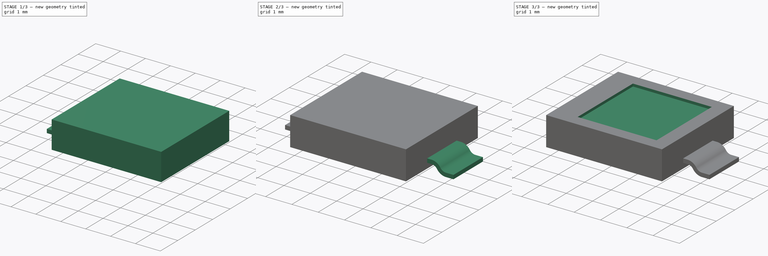
[diagram: build sequence overview — one tinted view per stage of 3, left to right]
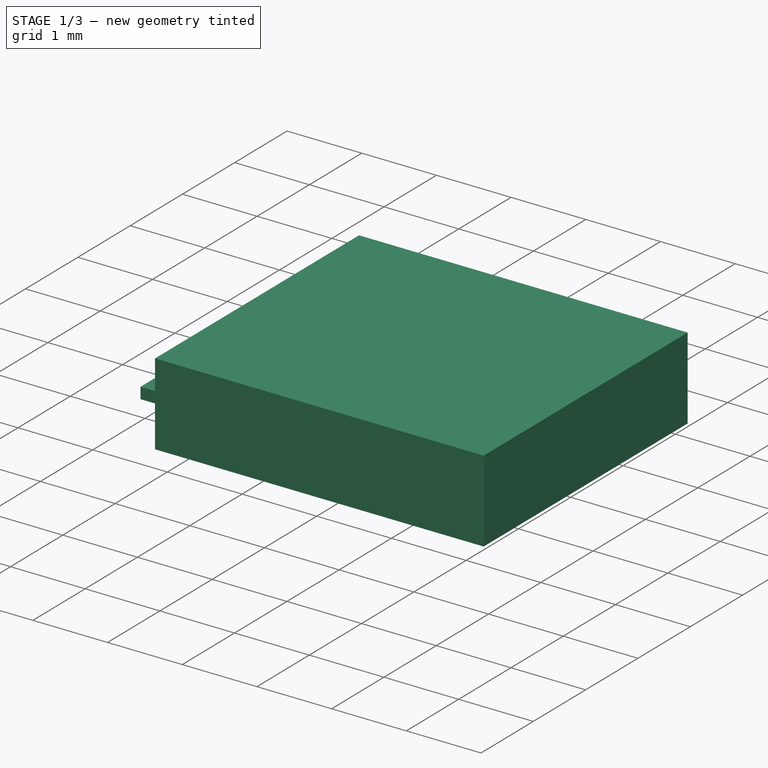
[diagram: stage 1 of 3 — iso view after this stage's code; geometry added in this stage tinted green]
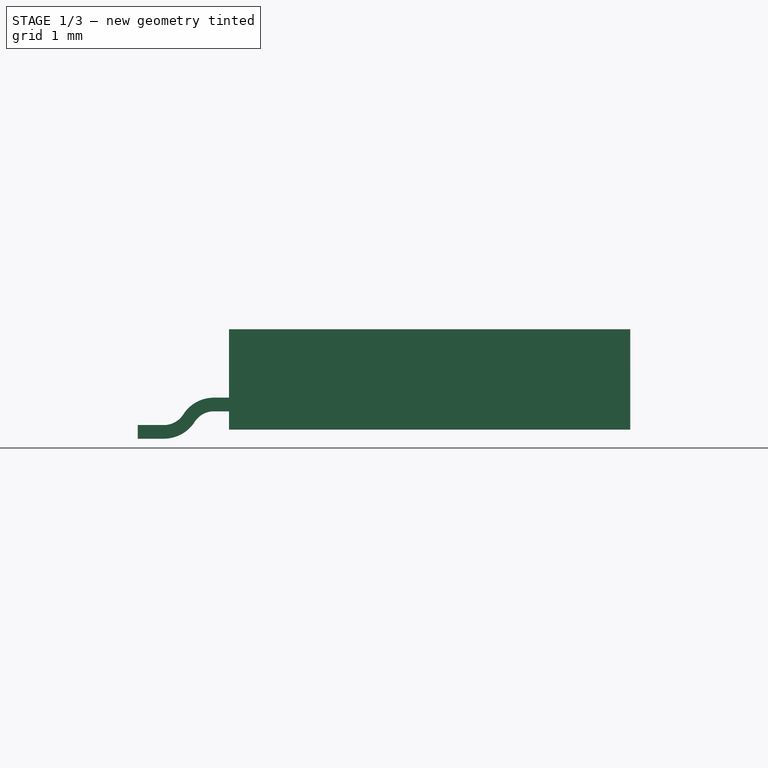
[diagram: stage 1 of 3 — front view after this stage's code; geometry added in this stage tinted green]
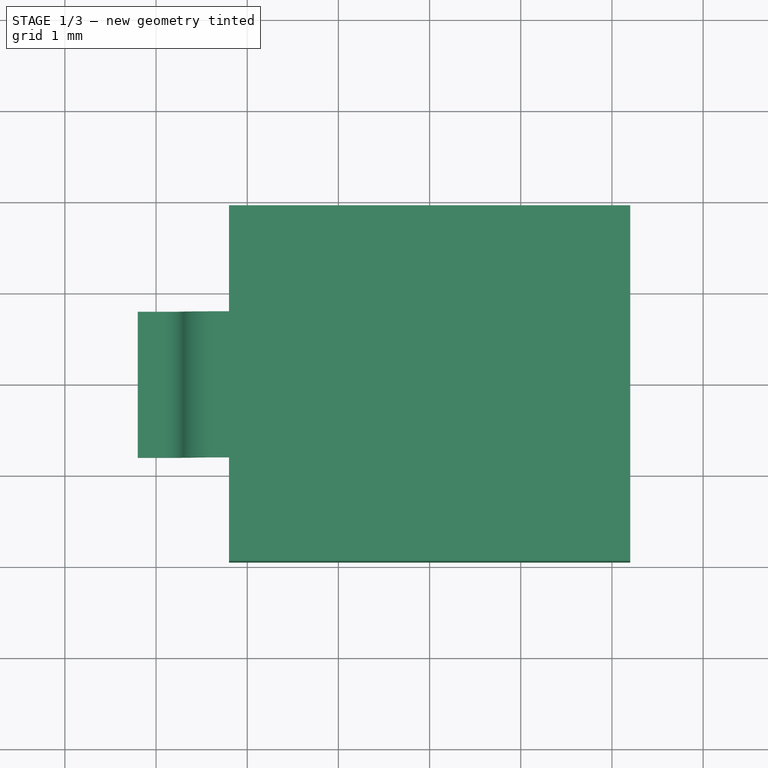
[diagram: stage 1 of 3 — top view after this stage's code; geometry added in this stage tinted green]
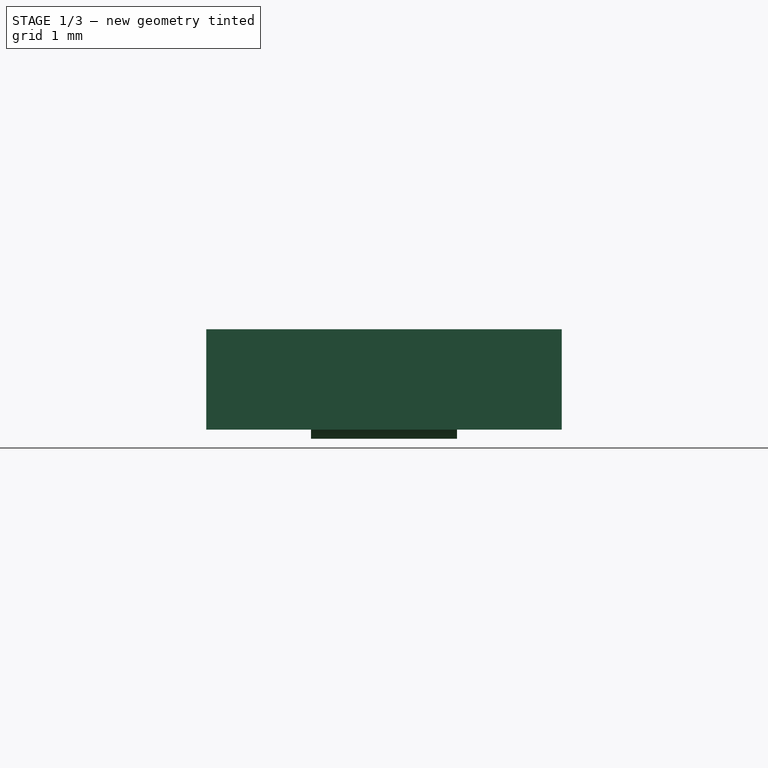
[diagram: stage 1 of 3 — right view after this stage's code; geometry added in this stage tinted green]
FCSTD DOCUMENT  (FreeCAD 0.21R33668 +26 (Git))
Label: VBPW34FAS
License: All rights reserved
LicenseURL: http://en.wikipedia.org/wiki/All_rights_reserved
objects: Sketcher::SketchObject×4, PartDesign::Pad×2, PartDesign::Pocket×2, PartDesign::Mirrored×1, PartDesign::Body×1
note: 14 computed .brp shape members not serialized (recipe doc carries the construction recipe); baked Part::Feature solids carry a one-line shape summary decoded from their .brp

FEATURE [Sketcher::SketchObject] Sketch
  FullyConstrained = true
  MapMode = 5
  Support = -> [XY_Plane]
  sketch-geometry (4):
    g0: LineSegment StartX=-2.2 StartY=1.95 StartZ=0 EndX=2.2 EndY=1.95 EndZ=0
    g1: LineSegment StartX=2.2 StartY=1.95 StartZ=0 EndX=2.2 EndY=-1.95 EndZ=0
    g2: LineSegment StartX=2.2 StartY=-1.95 StartZ=0 EndX=-2.2 EndY=-1.95 EndZ=0
    g3: LineSegment StartX=-2.2 StartY=-1.95 StartZ=0 EndX=-2.2 EndY=1.95 EndZ=0
  constraints (11):
    c: Coincident(g0,g1)
    c: Coincident(g1,g2)
    c: Coincident(g2,g3)
    c: Coincident(g3,g0)
    c: Horizontal(g0)
    c: Horizontal(g2)
    c: Vertical(g1)
    c: Vertical(g3)
    c: DistanceY(g1,g1) = 3.9
    c: DistanceX(g0,g0) = 4.4
    c: Symmetric(g0,g1,g-1)
FEATURE [PartDesign::Pad] Pad
  Direction = (0,0,1)
  Length = 1.2
  Length2 = -0.1
  Profile = -> Sketch
  ReferenceAxis = -> Sketch [N_Axis]
  Type = 4
FEATURE [Sketcher::SketchObject] Sketch001
  FullyConstrained = false
  MapMode = 5
  Placement = pos=(0,0,0) rot=(1,0,0;1.5708rad)
  Support = -> [XZ_Plane]
  sketch-geometry (12):
    g0: LineSegment StartX=-3.2 StartY=0 StartZ=0 EndX=-2.9 EndY=0 EndZ=0
    g1: LineSegment StartX=-2.9 StartY=0 StartZ=0 EndX=-2.9 EndY=0.15 EndZ=0
    g2: LineSegment StartX=-2.9 StartY=0.15 StartZ=0 EndX=-3.2 EndY=0.15 EndZ=0
    g3: LineSegment StartX=-3.2 StartY=0.15 StartZ=0 EndX=-3.2 EndY=0 EndZ=0
    g4: LineSegment StartX=-2.35 StartY=0.45 StartZ=0 EndX=-2.2 EndY=0.45 EndZ=0
    g5: LineSegment StartX=-2.2 StartY=0.45 StartZ=0 EndX=-2.2 EndY=0.3 EndZ=0
    g6: LineSegment StartX=-2.2 StartY=0.3 StartZ=0 EndX=-2.35 EndY=0.3 EndZ=0
    g7: LineSegment StartX=-2.35 StartY=0.3 StartZ=0 EndX=-2.35 EndY=0.45 EndZ=0
    g8: ArcOfCircle CenterX=-2.91542 CenterY=0.403575 CenterZ=0 NormalX=0 NormalY=0 NormalZ=1 AngleXU=0 Radius=0.254043 StartAngle=4.77314 EndAngle=5.71288
    g9: ArcOfCircle CenterX=-2.91542 CenterY=0.403575 CenterZ=0 NormalX=0 NormalY=0 NormalZ=1 AngleXU=0 Radius=0.403869 StartAngle=4.75059 EndAngle=5.71288
    g10: ArcOfCircle CenterX=-2.36521 CenterY=0.0506734 CenterZ=0 NormalX=0 NormalY=0 NormalZ=1 AngleXU=0 Radius=0.399616 StartAngle=1.53272 EndAngle=2.57129
    g11: ArcOfCircle CenterX=-2.36521 CenterY=0.0506734 CenterZ=0 NormalX=0 NormalY=0 NormalZ=1 AngleXU=0 Radius=0.24979 StartAngle=1.50986 EndAngle=2.57129
  constraints (32):
    c: Coincident(g0,g1)
    c: Coincident(g1,g2)
    c: Coincident(g2,g3)
    c: Coincident(g3,g0)
    c: Horizontal(g0)
    c: Horizontal(g2)
    c: Vertical(g1)
    c: Vertical(g3)
    c: PointOnObject(g0,g-1)
    c: Coincident(g4,g5)
    c: Coincident(g5,g6)
    c: Coincident(g6,g7)
    c: Coincident(g7,g4)
    c: Horizontal(g4)
    c: Horizontal(g6)
    c: Vertical(g5)
    c: Vertical(g7)
    c: DistanceX(g5,g-1) = 2.2
    c: Coincident(g8,g1)
    c: Coincident(g9,g8)
    c: Coincident(g9,g0)
    c: Coincident(g11,g10)
    c: Coincident(g11,g6)
    c: Tangent(g9,g11) = 1.5708
    c: Tangent(g10,g8) = 1.5708
    c: DistanceX(g0,g0) = 0.3
    c: DistanceX(g0,g5) = 1
    c: DistanceY(g5,g5) = 0.15
    c: DistanceY(g3,g3) = 0.15
    c: DistanceY(g-1,g5) = 0.3
    c: DistanceX(g6,g6) = 0.15
    c: Coincident(g10,g4)
FEATURE [PartDesign::Pad] Pad001
  BaseFeature = -> Pad
  Direction = (0,-1,2e-16)
  Length = 1.6
  Length2 = 10
  Midplane = true
  Profile = -> Sketch001
  ReferenceAxis = -> Sketch001 [N_Axis]
  Type = 0
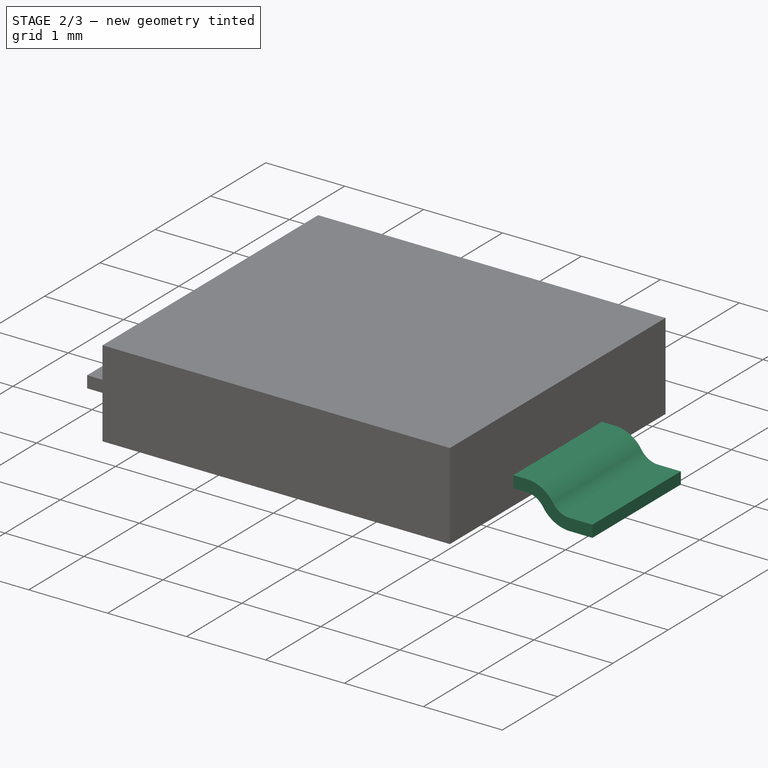
[diagram: stage 2 of 3 — iso view after this stage's code; geometry added in this stage tinted green]
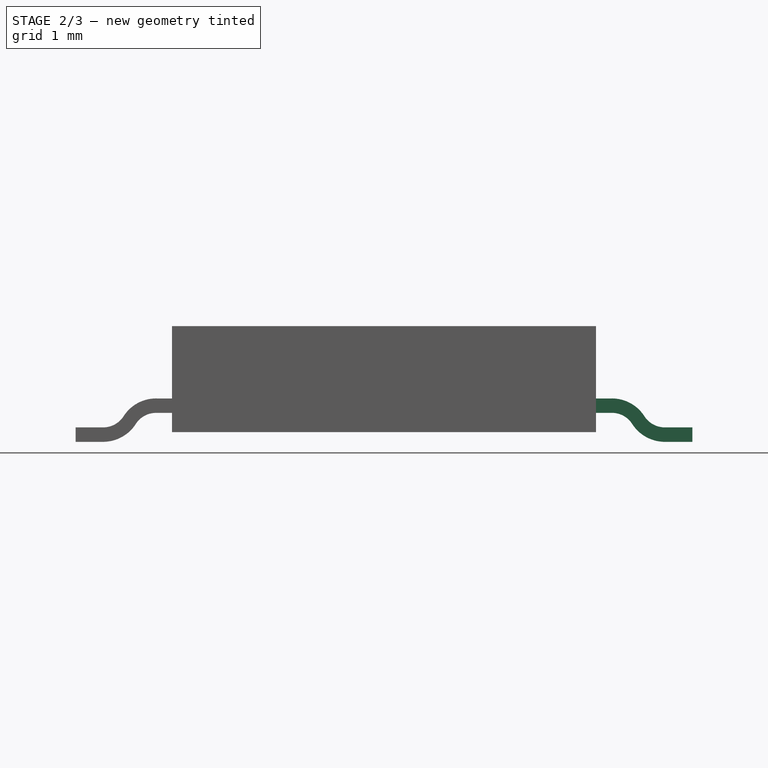
[diagram: stage 2 of 3 — front view after this stage's code; geometry added in this stage tinted green]
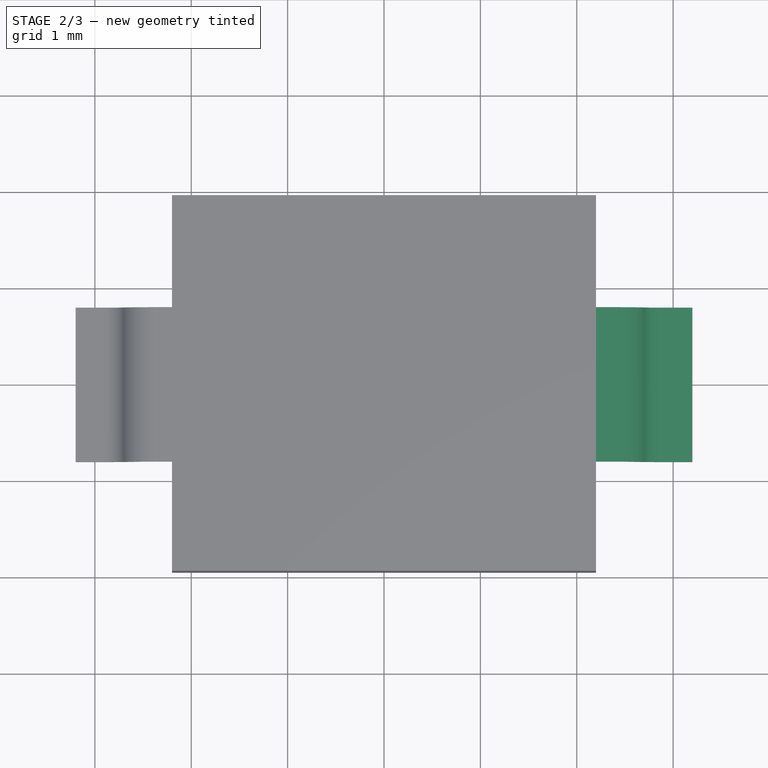
[diagram: stage 2 of 3 — top view after this stage's code; geometry added in this stage tinted green]
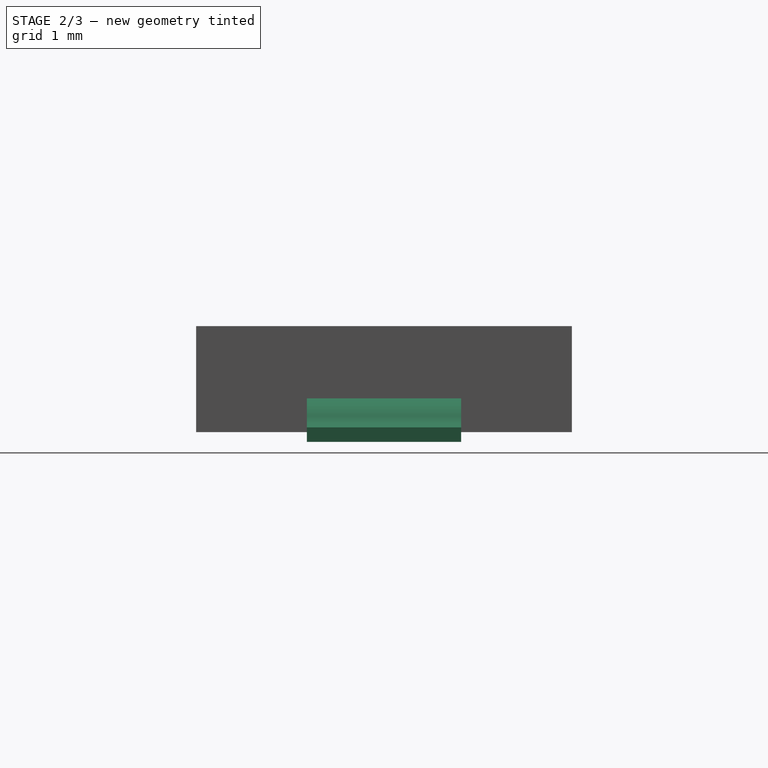
[diagram: stage 2 of 3 — right view after this stage's code; geometry added in this stage tinted green]
FEATURE [PartDesign::Mirrored] Mirrored
  BaseFeature = -> Pad001
  MirrorPlane = -> Sketch001 [V_Axis]
  Originals = -> [Pad001]
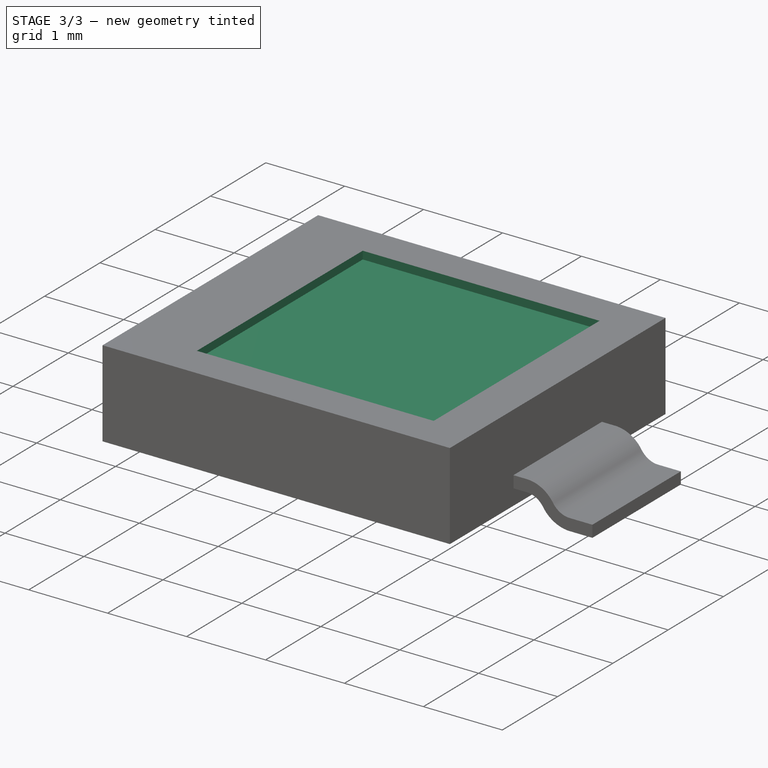
[diagram: stage 3 of 3 — iso view after this stage's code; geometry added in this stage tinted green]
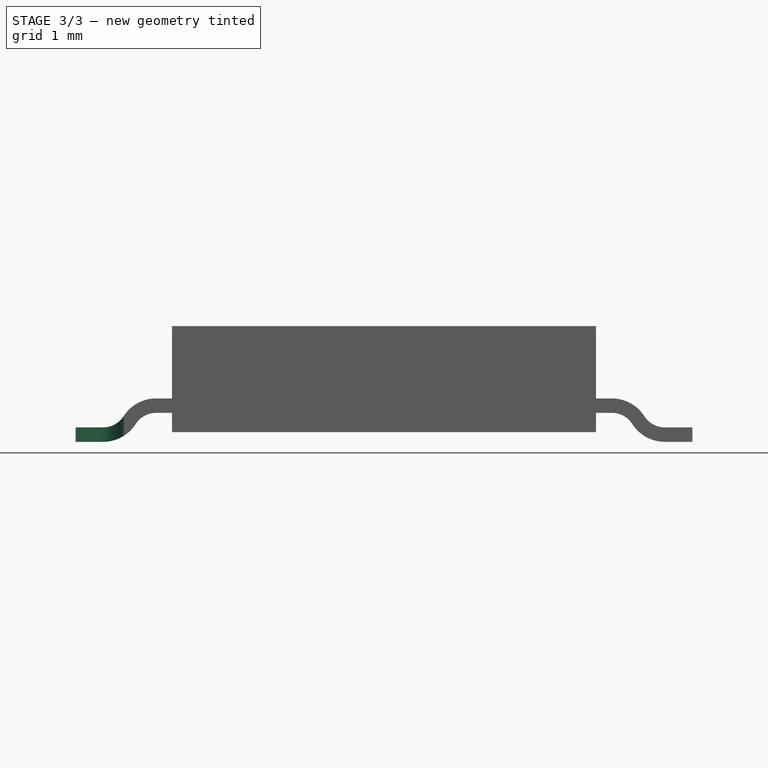
[diagram: stage 3 of 3 — front view after this stage's code; geometry added in this stage tinted green]
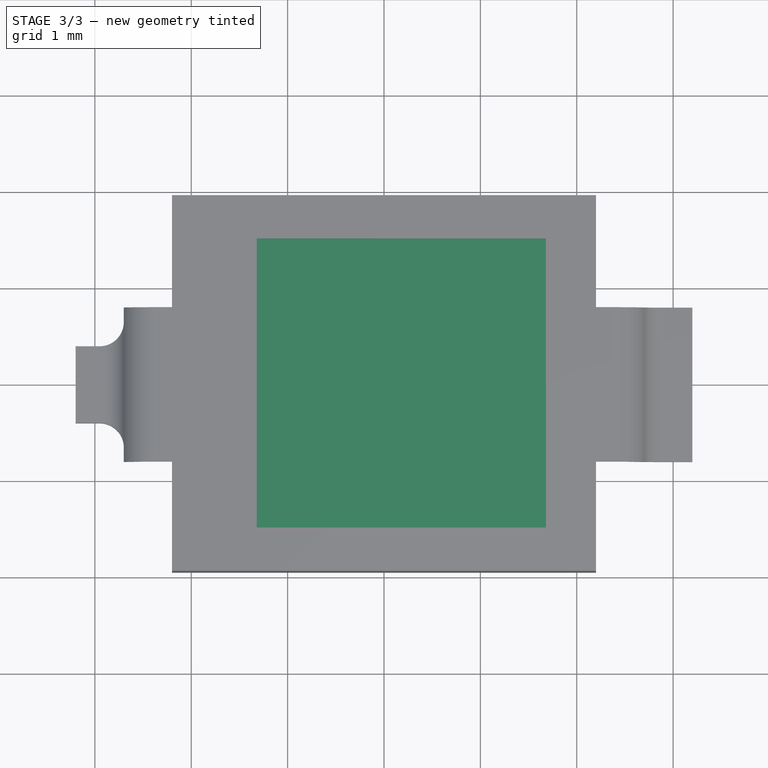
[diagram: stage 3 of 3 — top view after this stage's code; geometry added in this stage tinted green]
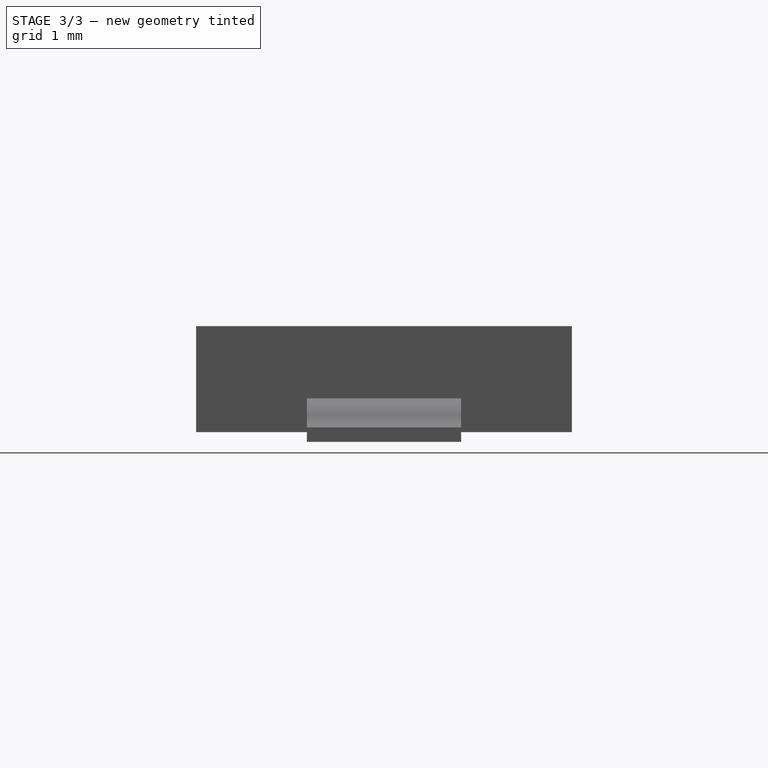
[diagram: stage 3 of 3 — right view after this stage's code; geometry added in this stage tinted green]
FEATURE [Sketcher::SketchObject] Sketch002
  FullyConstrained = true
  MapMode = 5
  Support = -> [XY_Plane]
  expr: Constraints[15] = 6.4 / 2
  sketch-geometry (15):
    g0: LineSegment StartX=-5.2 StartY=1.5 StartZ=0 EndX=-3.2 EndY=1.5 EndZ=0
    g1: LineSegment StartX=-3.2 StartY=-1.5 StartZ=0 EndX=-5.2 EndY=-1.5 EndZ=0
    g2: LineSegment StartX=-5.2 StartY=-1.5 StartZ=0 EndX=-5.2 EndY=1.5 EndZ=0
    g3: LineSegment StartX=-3.2 StartY=-0.4 StartZ=0 EndX=-3.2 EndY=0.4 EndZ=0
    g4: LineSegment StartX=-3.2 StartY=1.5 StartZ=0 EndX=-2.7 EndY=1.5 EndZ=0
    g5: LineSegment StartX=-2.7 StartY=-1.5 StartZ=0 EndX=-3.2 EndY=-1.5 EndZ=0
    g6: LineSegment StartX=-3.2 StartY=0.4 StartZ=0 EndX=-3.2 EndY=1.5 EndZ=0
    g7: LineSegment StartX=-3.2 StartY=-0.4 StartZ=0 EndX=-3.2 EndY=-1.5 EndZ=0
    g8: LineSegment StartX=-3.2 StartY=0.4 StartZ=0 EndX=-2.95 EndY=0.4 EndZ=0
    g9: LineSegment StartX=-2.7 StartY=0.65 StartZ=0 EndX=-2.7 EndY=1.5 EndZ=0
    g10: LineSegment StartX=-3.2 StartY=-0.4 StartZ=0 EndX=-2.95 EndY=-0.4 EndZ=0
    g11: LineSegment StartX=-2.7 StartY=-1.5 StartZ=0 EndX=-2.7 EndY=-0.65 EndZ=0
    g12: ArcOfCircle CenterX=-2.95 CenterY=0.65 CenterZ=0 NormalX=0 NormalY=0 NormalZ=1 AngleXU=0 Radius=0.25 StartAngle=4.71239 EndAngle=6.28319
    g13: ArcOfCircle CenterX=-2.95 CenterY=-0.65 CenterZ=0 NormalX=0 NormalY=0 NormalZ=1 AngleXU=0 Radius=0.25 StartAngle=1e-16 EndAngle=1.5708
    g14: LineSegment StartX=-2.95 StartY=0.4 StartZ=0 EndX=-2.95 EndY=-0.4 EndZ=0
  constraints (40):
    c: Coincident(g1,g2)
    c: Coincident(g2,g0)
    c: Horizontal(g0)
    c: Horizontal(g1)
    c: Vertical(g2)
    c: Vertical(g3)
    c: Coincident(g4,g0)
    c: Horizontal(g4)
    c: Coincident(g5,g1)
    c: Coincident(g6,g0)
    c: Vertical(g6)
    c: Vertical(g7)
    c: Horizontal(g5)
    c: DistanceY(g2,g2) = 3
    c: DistanceY(g-1,g4) = 1.5
    c: DistanceX(g3,g-1) = 3.2
    c: Equal(g6,g7)
    c: DistanceY(g3,g3) = 0.8
    c: DistanceX(g0,g0) = 2
    c: Coincident(g8,g3)
    c: Horizontal(g8)
    c: Coincident(g9,g4)
    c: Coincident(g10,g3)
    c: Horizontal(g10)
    c: Vertical(g9)
    c: Coincident(g6,g3)
    c: Coincident(g7,g3)
    c: Coincident(g7,g1)
    c: Coincident(g11,g5)
    c: Vertical(g11)
    c: Tangent(g8,g12) = -1.5708
    c: Tangent(g9,g12) = -1.5708
    c: Tangent(g10,g13) = 1.5708
    c: Tangent(g11,g13) = -1.5708
    c: Coincident(g14,g8)
    c: Coincident(g14,g10)
    c: Vertical(g14)
    c: Equal(g9,g11)
    c: DistanceX(g0,g4) = 0.5
    c: Diameter(g12) = 0.5
FEATURE [PartDesign::Pocket] Pocket
  BaseFeature = -> Mirrored
  Direction = (0,0,-1)
  Length = 5
  Length2 = 5
  Profile = -> Sketch002
  ReferenceAxis = -> Sketch002 [N_Axis]
  Reversed = true
  Type = 1
FEATURE [Sketcher::SketchObject] Sketch003
  FullyConstrained = true
  MapMode = 5
  Placement = pos=(0,0,1.2) rot=(0,0,1;0rad)
  Support = -> [Pocket]
  sketch-geometry (5):
    g0: LineSegment StartX=-1.32 StartY=1.5 StartZ=0 EndX=1.68 EndY=1.5 EndZ=0
    g1: LineSegment StartX=1.68 StartY=1.5 StartZ=0 EndX=1.68 EndY=-1.5 EndZ=0
    g2: LineSegment StartX=1.68 StartY=-1.5 StartZ=0 EndX=-1.32 EndY=-1.5 EndZ=0
    g3: LineSegment StartX=-1.32 StartY=-1.5 StartZ=0 EndX=-1.32 EndY=1.5 EndZ=0
    g4: GeomPoint X=0.18 Y=0 Z=0
  constraints (13):
    c: Coincident(g0,g1)
    c: Coincident(g1,g2)
    c: Coincident(g2,g3)
    c: Coincident(g3,g0)
    c: Horizontal(g0)
    c: Horizontal(g2)
    c: Vertical(g1)
    c: Vertical(g3)
    c: DistanceY(g1,g1) = 3
    c: DistanceX(g0,g0) = 3
    c: PointOnObject(g4,g-1)
    c: Symmetric(g0,g1,g4)
    c: DistanceX(g-1,g4) = 0.18
FEATURE [PartDesign::Pocket] Pocket001
  BaseFeature = -> Pocket
  Direction = (0,0,-1)
  Length = 0.1
  Length2 = 5
  Profile = -> Sketch003
  ReferenceAxis = -> Sketch003 [N_Axis]
  Type = 0
FEATURE [PartDesign::Body] Body
  Group = -> [Sketch,Pad,Sketch001,Pad001,Mirrored,Sketch002,Pocket,Sketch003,Pocket001]
  Origin = -> Origin
  Tip = -> Pocket001
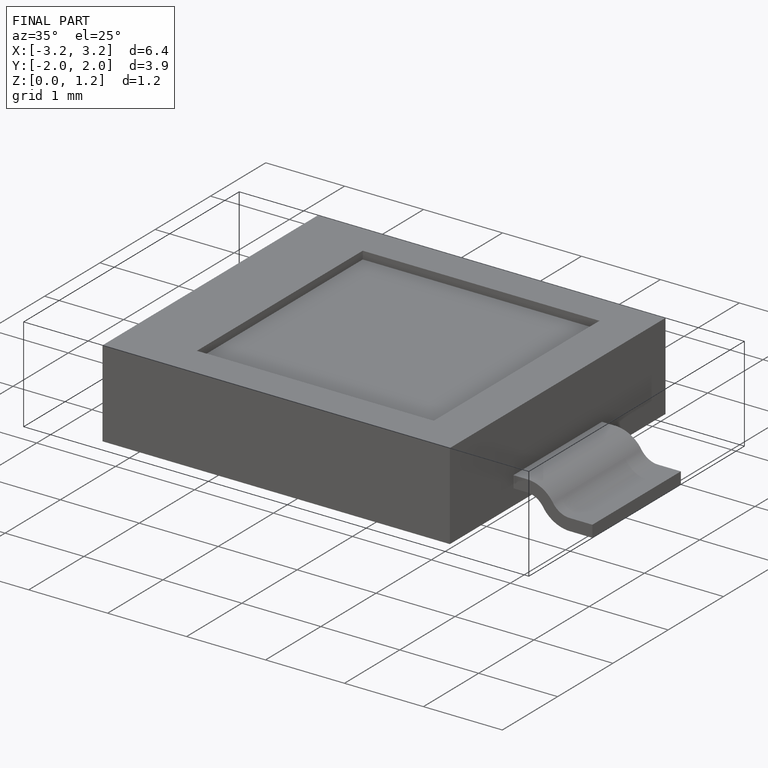
[diagram: finished part — iso view with bounding-box wireframe]
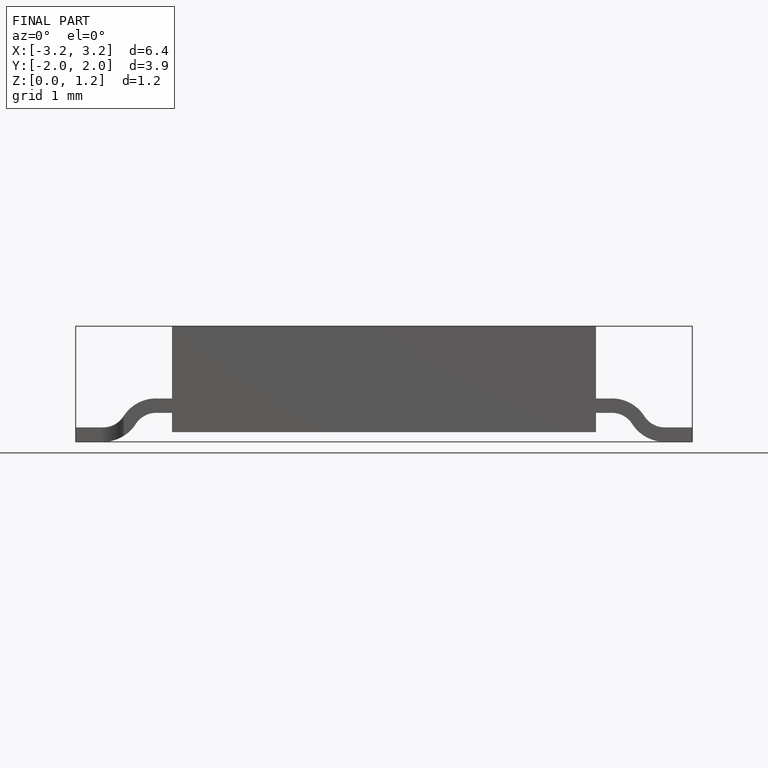
[diagram: finished part — front view with bounding-box wireframe]
